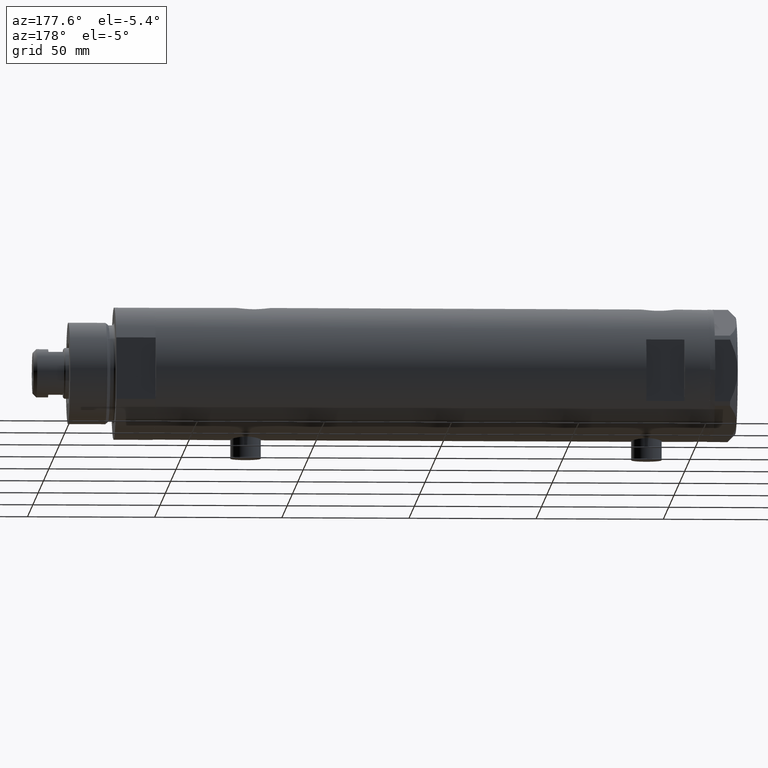
[diagram: clean part render]
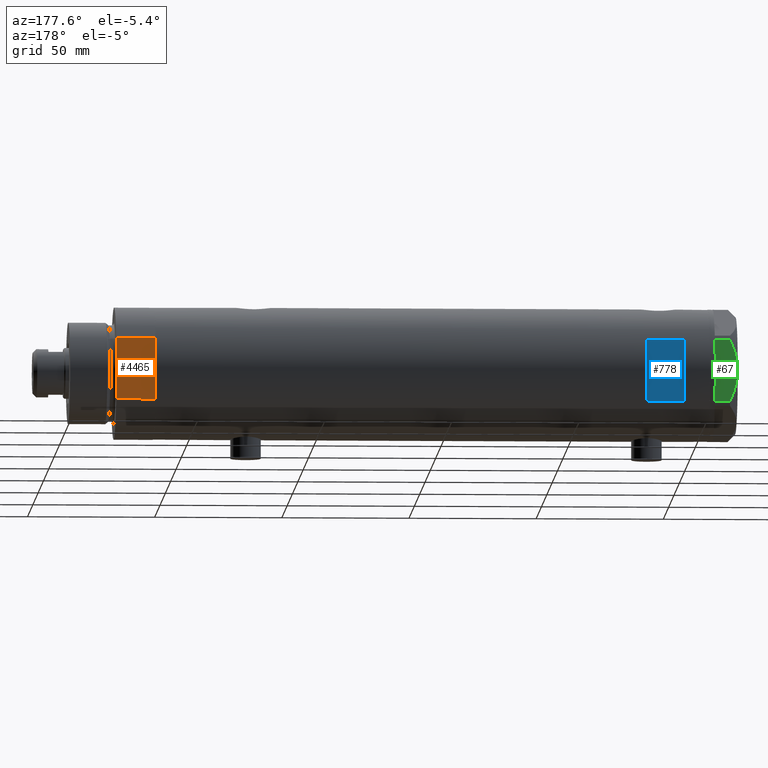
[diagram: same view with three faces highlighted in distinct colors, each labeled with its STEP entity id]
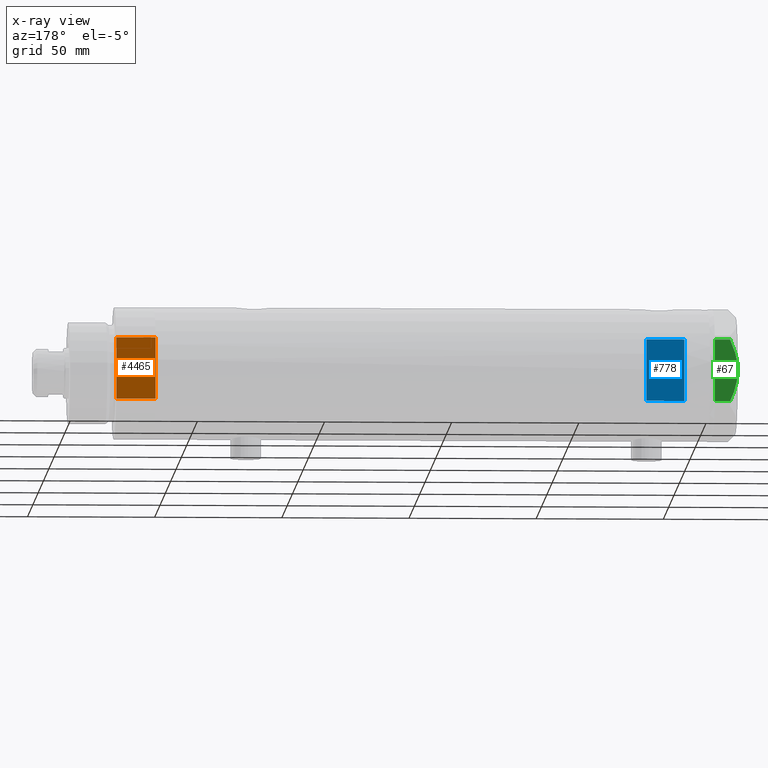
[diagram: x-ray of the same camera — body ghosted, the three highlighted faces saturated]
A machine part, auxiliary view with three faces highlighted in distinct colors.
The next image is the same camera in x-ray (body ghosted, the three faces saturated) — at least one of them is partly hidden behind the body in this view.
Their STEP definitions:

[orange] entity #4465 — the highlighted planar face has unit normal (0, -1, -0).
#53 = AXIS2_PLACEMENT_3D ( 'NONE', #2980, #3069, #3781 ) ;
#102 = EDGE_CURVE ( 'NONE', #906, #2375, #4101, .T. ) ;
#423 = DIRECTION ( 'NONE',  ( 1.000000000000000000, 0.000000000000000000, 0.000000000000000000 ) ) ;
#530 = EDGE_CURVE ( 'NONE', #906, #4392, #1942, .T. ) ;
#598 = DIRECTION ( 'NONE',  ( -0.000000000000000000, -0.000000000000000000, 1.000000000000000000 ) ) ;
#678 = VECTOR ( 'NONE', #598, 1000.000000000000000 ) ;
#906 = VERTEX_POINT ( 'NONE', #4693 ) ;
#1008 = CARTESIAN_POINT ( 'NONE',  ( -12.12435565298214613, 23.00000000000000355, 15.50000000000000000 ) ) ;
#1020 = EDGE_CURVE ( 'NONE', #4392, #2345, #4354, .T. ) ;
#1099 = DIRECTION ( 'NONE',  ( 1.000000000000000000, 0.000000000000000000, 0.000000000000000000 ) ) ;
#1104 = ORIENTED_EDGE ( 'NONE', *, *, #2378, .F. ) ;
#1329 = ORIENTED_EDGE ( 'NONE', *, *, #102, .F. ) ;
#1428 = VECTOR ( 'NONE', #3465, 1000.000000000000000 ) ;
#1543 = PLANE ( 'NONE',  #53 ) ;
#1802 = CARTESIAN_POINT ( 'NONE',  ( -12.12435565298215145, 23.00000000000000355, 15.50000000000000000 ) ) ;
#1940 = LINE ( 'NONE', #2313, #678 ) ;
#1942 = LINE ( 'NONE', #4611, #1428 ) ;
#2226 = CARTESIAN_POINT ( 'NONE',  ( 12.12435565298214790, 23.00000000000000355, 15.50000000000000000 ) ) ;
#2232 = FACE_OUTER_BOUND ( 'NONE', #2406, .T. ) ;
#2313 = CARTESIAN_POINT ( 'NONE',  ( 12.12435565298215323, 23.00000000000000355, 0.000000000000000000 ) ) ;
#2345 = VERTEX_POINT ( 'NONE', #2226 ) ;
#2375 = VERTEX_POINT ( 'NONE', #2489 ) ;
#2378 = EDGE_CURVE ( 'NONE', #2375, #2345, #1940, .T. ) ;
#2406 = EDGE_LOOP ( 'NONE', ( #2913, #1104, #1329, #2660 ) ) ;
#2489 = CARTESIAN_POINT ( 'NONE',  ( 12.12435565298214080, 23.00000000000000355, 0.000000000000000000 ) ) ;
#2660 = ORIENTED_EDGE ( 'NONE', *, *, #530, .T. ) ;
#2913 = ORIENTED_EDGE ( 'NONE', *, *, #1020, .T. ) ;
#2980 = CARTESIAN_POINT ( 'NONE',  ( -12.12435565298215145, 23.00000000000000355, 0.000000000000000000 ) ) ;
#3069 = DIRECTION ( 'NONE',  ( 0.000000000000000000, -1.000000000000000000, 0.000000000000000000 ) ) ;
#3260 = VECTOR ( 'NONE', #1099, 1000.000000000000000 ) ;
#3457 = CARTESIAN_POINT ( 'NONE',  ( -12.12435565298215145, 23.00000000000000355, 0.000000000000000000 ) ) ;
#3465 = DIRECTION ( 'NONE',  ( -0.000000000000000000, -0.000000000000000000, 1.000000000000000000 ) ) ;
#3731 = VECTOR ( 'NONE', #423, 1000.000000000000000 ) ;
#3781 = DIRECTION ( 'NONE',  ( 0.000000000000000000, -0.000000000000000000, -1.000000000000000000 ) ) ;
#4101 = LINE ( 'NONE', #3457, #3731 ) ;
#4354 = LINE ( 'NONE', #1802, #3260 ) ;
#4392 = VERTEX_POINT ( 'NONE', #1008 ) ;
#4465 = ADVANCED_FACE ( 'NONE', ( #2232 ), #1543, .F. ) ;
#4611 = CARTESIAN_POINT ( 'NONE',  ( -12.12435565298215145, 23.00000000000000355, 0.000000000000000000 ) ) ;
#4693 = CARTESIAN_POINT ( 'NONE',  ( -12.12435565298215145, 23.00000000000000355, 0.000000000000000000 ) ) ;

[blue] entity #778 — the highlighted planar face has unit normal (0, -1, -0).
#108 = VECTOR ( 'NONE', #4051, 1000.000000000000000 ) ;
#173 = FACE_OUTER_BOUND ( 'NONE', #3891, .T. ) ;
#218 = LINE ( 'NONE', #1728, #108 ) ;
#396 = CARTESIAN_POINT ( 'NONE',  ( 12.12435565298214080, 23.00000000000000355, 98.95000000000001705 ) ) ;
#489 = ORIENTED_EDGE ( 'NONE', *, *, #587, .T. ) ;
#587 = EDGE_CURVE ( 'NONE', #2221, #3529, #1359, .T. ) ;
#606 = CARTESIAN_POINT ( 'NONE',  ( -12.12435565298214080, 23.00000000000000355, 98.95000000000001705 ) ) ;
#778 = ADVANCED_FACE ( 'NONE', ( #173 ), #1032, .F. ) ;
#1032 = PLANE ( 'NONE',  #4269 ) ;
#1149 = LINE ( 'NONE', #1479, #3273 ) ;
#1284 = DIRECTION ( 'NONE',  ( 0.000000000000000000, 0.000000000000000000, 1.000000000000000000 ) ) ;
#1359 = LINE ( 'NONE', #1994, #3959 ) ;
#1367 = VERTEX_POINT ( 'NONE', #3446 ) ;
#1479 = CARTESIAN_POINT ( 'NONE',  ( -26.00000000000000355, 23.00000000000000355, 98.95000000000001705 ) ) ;
#1728 = CARTESIAN_POINT ( 'NONE',  ( 12.12435565298214080, 23.00000000000000355, -108.9500000000000028 ) ) ;
#1994 = CARTESIAN_POINT ( 'NONE',  ( -12.12435565298214080, 23.00000000000000355, -108.9500000000000028 ) ) ;
#2035 = EDGE_CURVE ( 'NONE', #3993, #1367, #218, .T. ) ;
#2088 = DIRECTION ( 'NONE',  ( 0.000000000000000000, -1.000000000000000000, -0.000000000000000000 ) ) ;
#2221 = VERTEX_POINT ( 'NONE', #4757 ) ;
#2374 = LINE ( 'NONE', #4324, #4372 ) ;
#2483 = DIRECTION ( 'NONE',  ( 0.000000000000000000, 0.000000000000000000, -1.000000000000000000 ) ) ;
#2710 = ORIENTED_EDGE ( 'NONE', *, *, #4143, .F. ) ;
#2753 = ORIENTED_EDGE ( 'NONE', *, *, #2035, .T. ) ;
#2831 = CARTESIAN_POINT ( 'NONE',  ( -26.00000000000000355, 23.00000000000000355, 98.95000000000001705 ) ) ;
#2868 = EDGE_CURVE ( 'NONE', #3529, #3993, #1149, .T. ) ;
#3178 = DIRECTION ( 'NONE',  ( 1.000000000000000000, -0.000000000000000000, -0.000000000000000000 ) ) ;
#3273 = VECTOR ( 'NONE', #3426, 1000.000000000000000 ) ;
#3426 = DIRECTION ( 'NONE',  ( 1.000000000000000000, -0.000000000000000000, -0.000000000000000000 ) ) ;
#3446 = CARTESIAN_POINT ( 'NONE',  ( 12.12435565298213724, 23.00000000000000355, 83.95000000000003126 ) ) ;
#3529 = VERTEX_POINT ( 'NONE', #606 ) ;
#3870 = ORIENTED_EDGE ( 'NONE', *, *, #2868, .T. ) ;
#3891 = EDGE_LOOP ( 'NONE', ( #2753, #2710, #489, #3870 ) ) ;
#3959 = VECTOR ( 'NONE', #1284, 1000.000000000000000 ) ;
#3993 = VERTEX_POINT ( 'NONE', #396 ) ;
#4051 = DIRECTION ( 'NONE',  ( -0.000000000000000000, -0.000000000000000000, -1.000000000000000000 ) ) ;
#4143 = EDGE_CURVE ( 'NONE', #2221, #1367, #2374, .T. ) ;
#4269 = AXIS2_PLACEMENT_3D ( 'NONE', #2831, #2088, #2483 ) ;
#4324 = CARTESIAN_POINT ( 'NONE',  ( -26.00000000000000355, 23.00000000000000355, 83.95000000000003126 ) ) ;
#4372 = VECTOR ( 'NONE', #3178, 1000.000000000000000 ) ;
#4757 = CARTESIAN_POINT ( 'NONE',  ( -12.12435565298214080, 23.00000000000000355, 83.95000000000003126 ) ) ;

[green] entity #67 — the highlighted planar face has unit normal (0, -1, 0).
#12 = EDGE_CURVE ( 'NONE', #2015, #4782, #3884, .T. ) ;
#67 = ADVANCED_FACE ( 'NONE', ( #3510 ), #3819, .F. ) ;
#132 = VERTEX_POINT ( 'NONE', #2379 ) ;
#270 = DIRECTION ( 'NONE',  ( 1.032024811306395780E-14, -1.000000000000000000, 0.000000000000000000 ) ) ;
#319 = CARTESIAN_POINT ( 'NONE',  ( 22.99999999999995026, 2.373657066004705010E-13, 9.000000000000000000 ) ) ;
#381 = DIRECTION ( 'NONE',  ( -1.032024811306395780E-14, 1.000000000000000000, 0.000000000000000000 ) ) ;
#450 = CARTESIAN_POINT ( 'NONE',  ( 23.00000000000008527, -13.27905619136115867, 0.000000000000000000 ) ) ;
#599 = VECTOR ( 'NONE', #3642, 1000.000000000000000 ) ;
#626 = LINE ( 'NONE', #2107, #4664 ) ;
#627 = CARTESIAN_POINT ( 'NONE',  ( 22.99999999999987921, 7.253003311474552461, 7.903276810347635184 ) ) ;
#649 = CARTESIAN_POINT ( 'NONE',  ( 22.99999999999985079, 9.734726261263462632, 7.028924700095659617 ) ) ;
#1012 = CARTESIAN_POINT ( 'NONE',  ( 22.99999999999994671, 0.5295934231899334099, 9.000000000000095923 ) ) ;
#1045 = VECTOR ( 'NONE', #1490, 1000.000000000000000 ) ;
#1059 = CARTESIAN_POINT ( 'NONE',  ( 23.00000000000007461, -12.15905619136115412, 5.983800287807623519 ) ) ;
#1103 = CARTESIAN_POINT ( 'NONE',  ( 23.00000000000008527, -13.27905619136115867, 0.000000000000000000 ) ) ;
#1186 = VECTOR ( 'NONE', #3195, 1000.000000000000000 ) ;
#1311 = CARTESIAN_POINT ( 'NONE',  ( 23.00000000000008527, -13.27905619136115867, 9.000000000000000000 ) ) ;
#1386 = CARTESIAN_POINT ( 'NONE',  ( 22.99999999999997513, -2.122900714017905699, 9.000000000000095923 ) ) ;
#1409 = CARTESIAN_POINT ( 'NONE',  ( 23.00000000000006395, -11.20825071633898240, 6.428173306378455187 ) ) ;
#1424 = CARTESIAN_POINT ( 'NONE',  ( 23.00000000000005684, -10.23890159976104641, 6.840812428290920622 ) ) ;
#1447 = CARTESIAN_POINT ( 'NONE',  ( 22.99999999999982236, 12.15905619136164262, 5.983800287807618190 ) ) ;
#1478 = EDGE_CURVE ( 'NONE', #4458, #2015, #4514, .T. ) ;
#1490 = DIRECTION ( 'NONE',  ( 0.000000000000000000, 0.000000000000000000, -1.000000000000000000 ) ) ;
#1584 = ORIENTED_EDGE ( 'NONE', *, *, #2433, .T. ) ;
#1788 = CARTESIAN_POINT ( 'NONE',  ( 22.99999999999982236, 12.15905619136164262, 5.983800287807618190 ) ) ;
#1864 = ORIENTED_EDGE ( 'NONE', *, *, #1478, .T. ) ;
#1911 = VECTOR ( 'NONE', #381, 1000.000000000000000 ) ;
#1998 = ORIENTED_EDGE ( 'NONE', *, *, #2673, .F. ) ;
#2015 = VERTEX_POINT ( 'NONE', #3217 ) ;
#2055 = DIRECTION ( 'NONE',  ( 0.000000000000000000, 0.000000000000000000, 1.000000000000000000 ) ) ;
#2100 = VERTEX_POINT ( 'NONE', #3994 ) ;
#2107 = CARTESIAN_POINT ( 'NONE',  ( 22.99999999999982236, 12.15905619136163729, 9.000000000000000000 ) ) ;
#2108 = CARTESIAN_POINT ( 'NONE',  ( 22.99999999999983658, 10.22738952213810926, 6.832470313674774864 ) ) ;
#2112 = EDGE_CURVE ( 'NONE', #2100, #2214, #626, .T. ) ;
#2132 = CARTESIAN_POINT ( 'NONE',  ( 22.99999999999992539, 2.119709279062085727, 8.908535212173203988 ) ) ;
#2188 = CARTESIAN_POINT ( 'NONE',  ( 22.99999999999990052, 5.228918809624284236, 8.433337033849852560 ) ) ;
#2214 = VERTEX_POINT ( 'NONE', #1788 ) ;
#2250 = CARTESIAN_POINT ( 'NONE',  ( 23.00000000000007461, -12.15905619136115590, 9.000000000000000000 ) ) ;
#2256 = CARTESIAN_POINT ( 'NONE',  ( 23.00000000000007461, -12.15905619136115412, 5.983800287807623519 ) ) ;
#2287 = ORIENTED_EDGE ( 'NONE', *, *, #12, .T. ) ;
#2290 = CARTESIAN_POINT ( 'NONE',  ( 23.00000000000007461, -12.12435565298200224, 0.000000000000000000 ) ) ;
#2379 = CARTESIAN_POINT ( 'NONE',  ( 22.99999999999995026, 2.373657066004705010E-13, 9.000000000000000000 ) ) ;
#2433 = EDGE_CURVE ( 'NONE', #3495, #2100, #3404, .T. ) ;
#2673 = EDGE_CURVE ( 'NONE', #132, #2214, #4672, .T. ) ;
#2915 = CARTESIAN_POINT ( 'NONE',  ( 22.99999999999999289, -4.194757081058811288, 8.703000351525204792 ) ) ;
#2930 = AXIS2_PLACEMENT_3D ( 'NONE', #1311, #3664, #270 ) ;
#2946 = ORIENTED_EDGE ( 'NONE', *, *, #3572, .T. ) ;
#3084 = ORIENTED_EDGE ( 'NONE', *, *, #3565, .F. ) ;
#3155 = B_SPLINE_CURVE_WITH_KNOTS ( 'NONE', 3,
 ( #1059, #1409, #1424, #3295, #4750, #3266, #4052, #2915, #1386, #319 ),
 .UNSPECIFIED., .F., .F.,
 ( 4, 2, 2, 2, 4 ),
 ( 0.03516523594057417712, 0.03831677594541235687, 0.03989254594783144675, 0.04146831595025053663, 0.04777139595992689614 ),
 .UNSPECIFIED. ) ;
#3195 = DIRECTION ( 'NONE',  ( -1.032024811306395780E-14, 1.000000000000000000, 0.000000000000000000 ) ) ;
#3217 = CARTESIAN_POINT ( 'NONE',  ( 23.00000000000007461, -12.15905619136115590, 0.000000000000000000 ) ) ;
#3233 = CARTESIAN_POINT ( 'NONE',  ( 22.99999999999995026, 2.373657066004705010E-13, 9.000000000000000000 ) ) ;
#3257 = CARTESIAN_POINT ( 'NONE',  ( 22.99999999999990763, 4.203926054642127319, 8.641681223122510858 ) ) ;
#3266 = CARTESIAN_POINT ( 'NONE',  ( 23.00000000000002842, -7.239756182922028493, 7.892186063422852449 ) ) ;
#3295 = CARTESIAN_POINT ( 'NONE',  ( 23.00000000000004263, -8.748091966971204059, 7.396818978284578350 ) ) ;
#3404 = LINE ( 'NONE', #450, #1911 ) ;
#3495 = VERTEX_POINT ( 'NONE', #3563 ) ;
#3510 = FACE_OUTER_BOUND ( 'NONE', #4675, .T. ) ;
#3563 = CARTESIAN_POINT ( 'NONE',  ( 22.99999999999982592, 12.12435565298247653, 0.000000000000000000 ) ) ;
#3565 = EDGE_CURVE ( 'NONE', #4458, #132, #3155, .T. ) ;
#3572 = EDGE_CURVE ( 'NONE', #4782, #3495, #4484, .T. ) ;
#3635 = CARTESIAN_POINT ( 'NONE',  ( 22.99999999999984368, 11.20155944044832630, 6.421102682632754188 ) ) ;
#3642 = DIRECTION ( 'NONE',  ( -1.032024811306395780E-14, 1.000000000000000000, 0.000000000000000000 ) ) ;
#3664 = DIRECTION ( 'NONE',  ( -1.000000000000000000, -1.032024811306395780E-14, 0.000000000000000000 ) ) ;
#3819 = PLANE ( 'NONE',  #2930 ) ;
#3884 = LINE ( 'NONE', #4366, #1186 ) ;
#3994 = CARTESIAN_POINT ( 'NONE',  ( 22.99999999999982236, 12.15905619136163729, 0.000000000000000000 ) ) ;
#3995 = CARTESIAN_POINT ( 'NONE',  ( 22.99999999999992184, 2.643615312305318099, 8.854304560636265364 ) ) ;
#4021 = CARTESIAN_POINT ( 'NONE',  ( 22.99999999999982947, 11.68282849742352525, 6.206372352695418648 ) ) ;
#4052 = CARTESIAN_POINT ( 'NONE',  ( 23.00000000000002132, -6.734330413511252722, 8.039389741252669808 ) ) ;
#4057 = ORIENTED_EDGE ( 'NONE', *, *, #2112, .T. ) ;
#4353 = CARTESIAN_POINT ( 'NONE',  ( 22.99999999999986500, 8.252113629125430450, 7.581642062680224115 ) ) ;
#4366 = CARTESIAN_POINT ( 'NONE',  ( 23.00000000000008527, -13.27905619136115867, 0.000000000000000000 ) ) ;
#4458 = VERTEX_POINT ( 'NONE', #2256 ) ;
#4484 = LINE ( 'NONE', #1103, #599 ) ;
#4514 = LINE ( 'NONE', #2250, #1045 ) ;
#4664 = VECTOR ( 'NONE', #2055, 1000.000000000000000 ) ;
#4672 = B_SPLINE_CURVE_WITH_KNOTS ( 'NONE', 3,
 ( #3233, #1012, #4720, #2132, #3995, #3257, #2188, #627, #4353, #649, #2108, #3635, #4021, #1447 ),
 .UNSPECIFIED., .F., .F.,
 ( 4, 2, 2, 2, 2, 2, 4 ),
 ( 0.04777139595992689614, 0.04934380568070229067, 0.05091621540147768521, 0.05406103484302848122, 0.05720585428457927030, 0.05877826400535466483, 0.06035067372613005937 ),
 .UNSPECIFIED. ) ;
#4675 = EDGE_LOOP ( 'NONE', ( #3084, #1864, #2287, #2946, #1584, #4057, #1998 ) ) ;
#4720 = CARTESIAN_POINT ( 'NONE',  ( 22.99999999999993960, 1.063773509315896648, 8.981438083606837708 ) ) ;
#4750 = CARTESIAN_POINT ( 'NONE',  ( 23.00000000000003197, -8.246028007352183664, 7.571131808646910599 ) ) ;
#4782 = VERTEX_POINT ( 'NONE', #2290 ) ;